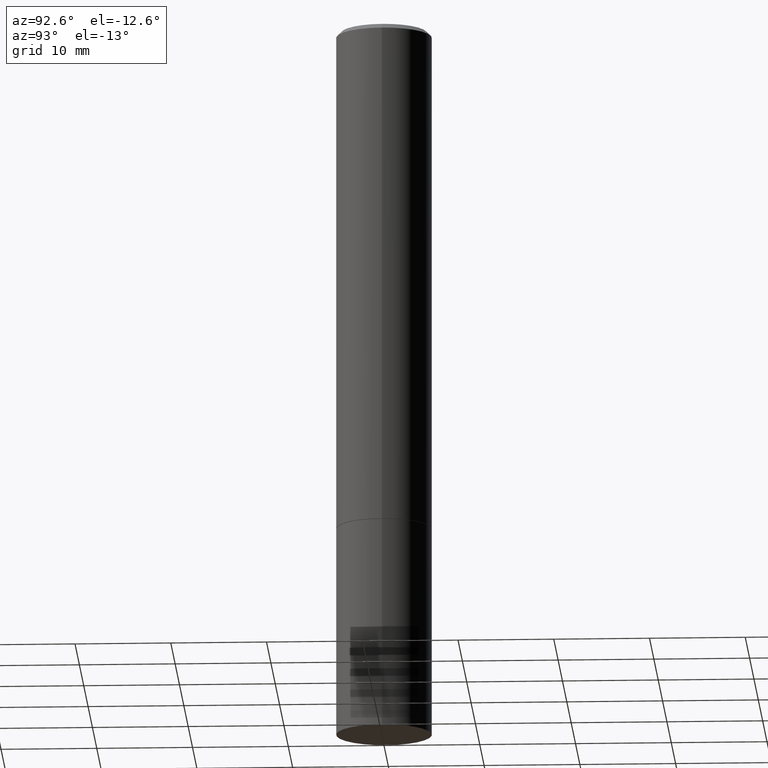
[diagram: clean part render]
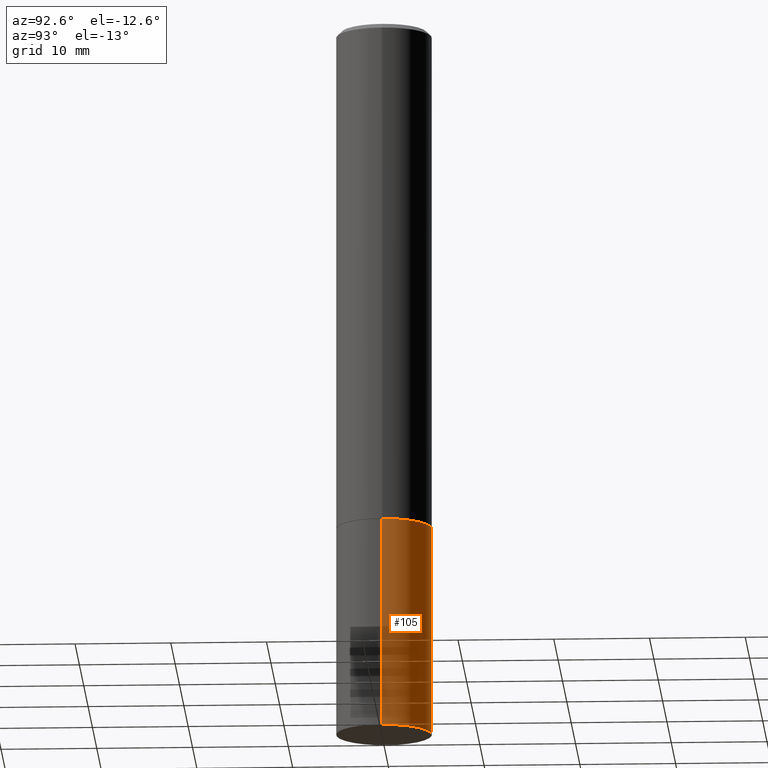
[diagram: same view with one face highlighted and labeled with its STEP entity id]
A machine part, auxiliary view. The second image highlights one B-rep face of the part: STEP entity #105.
In plain terms, the highlighted cylindrical surface (partial cylindrical patch) has radius 5 mm, axis along (-0, 0, 1).
Its self-contained STEP definition (entity closure, byte-faithful):
#1 = VERTEX_POINT ( 'NONE', #18 ) ;
#5 = VECTOR ( 'NONE', #69, 39.37007874015748143 ) ;
#18 = CARTESIAN_POINT ( 'NONE',  ( 0.1968500000000000250, -8.660270312866532536E-15, -2.086699999999999999 ) ) ;
#22 = CIRCLE ( 'NONE', #302, 0.1968500000000000250 ) ;
#32 = ORIENTED_EDGE ( 'NONE', *, *, #365, .F. ) ;
#43 = CARTESIAN_POINT ( 'NONE',  ( -0.1968500000000000250, -7.398956728206258518E-15, -2.952799999999999869 ) ) ;
#48 = DIRECTION ( 'NONE',  ( -2.445468806185136877E-29, 3.491481338843145188E-15, 1.000000000000000000 ) ) ;
#62 = ORIENTED_EDGE ( 'NONE', *, *, #185, .F. ) ;
#69 = DIRECTION ( 'NONE',  ( -2.445468806185136877E-29, 3.491481338843145188E-15, 1.000000000000000000 ) ) ;
#70 = DIRECTION ( 'NONE',  ( -2.445468806185136597E-29, 3.491481338843145583E-15, 1.000000000000000000 ) ) ;
#78 = CARTESIAN_POINT ( 'NONE',  ( 7.220980290903470182E-29, -1.030964609733603853E-14, -2.952799999999999869 ) ) ;
#104 = DIRECTION ( 'NONE',  ( -2.445468806185136597E-29, 3.491481338843145583E-15, 1.000000000000000000 ) ) ;
#105 = ADVANCED_FACE ( 'NONE', ( #150 ), #348, .T. ) ;
#150 = FACE_OUTER_BOUND ( 'NONE', #316, .T. ) ;
#152 = CARTESIAN_POINT ( 'NONE',  ( 5.102959757866523939E-29, -7.285674109763990928E-15, -2.086699999999999999 ) ) ;
#179 = EDGE_CURVE ( 'NONE', #188, #181, #321, .T. ) ;
#181 = VERTEX_POINT ( 'NONE', #300 ) ;
#185 = EDGE_CURVE ( 'NONE', #1, #181, #22, .T. ) ;
#188 = VERTEX_POINT ( 'NONE', #43 ) ;
#191 = AXIS2_PLACEMENT_3D ( 'NONE', #216, #70, #236 ) ;
#193 = LINE ( 'NONE', #250, #310 ) ;
#205 = CIRCLE ( 'NONE', #233, 0.1968500000000000250 ) ;
#207 = ORIENTED_EDGE ( 'NONE', *, *, #327, .T. ) ;
#216 = CARTESIAN_POINT ( 'NONE',  ( 0.000000000000000000, 0.000000000000000000, 0.000000000000000000 ) ) ;
#222 = DIRECTION ( 'NONE',  ( 1.000000000000000000, -6.982962677686267499E-15, 0.000000000000000000 ) ) ;
#228 = ORIENTED_EDGE ( 'NONE', *, *, #179, .T. ) ;
#232 = VERTEX_POINT ( 'NONE', #245 ) ;
#233 = AXIS2_PLACEMENT_3D ( 'NONE', #78, #104, #222 ) ;
#236 = DIRECTION ( 'NONE',  ( 1.000000000000000000, -6.982962677686265922E-15, 4.876176775795935793E-29 ) ) ;
#245 = CARTESIAN_POINT ( 'NONE',  ( 0.1968500000000000250, -1.168424230043858014E-14, -2.952799999999999869 ) ) ;
#250 = CARTESIAN_POINT ( 'NONE',  ( 0.1968500000000000250, -1.374596203102541608E-15, 9.598753983154300858E-30 ) ) ;
#267 = DIRECTION ( 'NONE',  ( 1.000000000000000000, -6.982962677686267499E-15, 0.000000000000000000 ) ) ;
#300 = CARTESIAN_POINT ( 'NONE',  ( -0.1968500000000000250, -7.398956728206258518E-15, -2.086699999999999999 ) ) ;
#302 = AXIS2_PLACEMENT_3D ( 'NONE', #152, #325, #267 ) ;
#310 = VECTOR ( 'NONE', #48, 39.37007874015748143 ) ;
#316 = EDGE_LOOP ( 'NONE', ( #207, #228, #62, #32 ) ) ;
#321 = LINE ( 'NONE', #324, #5 ) ;
#324 = CARTESIAN_POINT ( 'NONE',  ( -0.1968500000000000250, 1.398703375343757393E-15, -9.682923725166783677E-30 ) ) ;
#325 = DIRECTION ( 'NONE',  ( -2.445468806185136597E-29, 3.491481338843145583E-15, 1.000000000000000000 ) ) ;
#327 = EDGE_CURVE ( 'NONE', #232, #188, #205, .T. ) ;
#348 = CYLINDRICAL_SURFACE ( 'NONE', #191, 0.1968500000000000250 ) ;
#365 = EDGE_CURVE ( 'NONE', #232, #1, #193, .T. ) ;